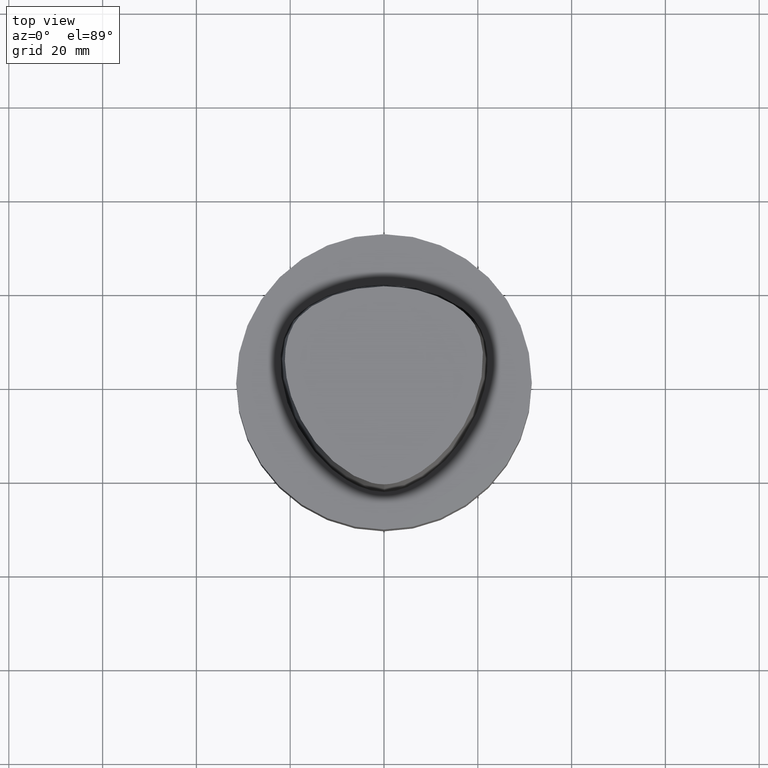
[diagram: clean part render]
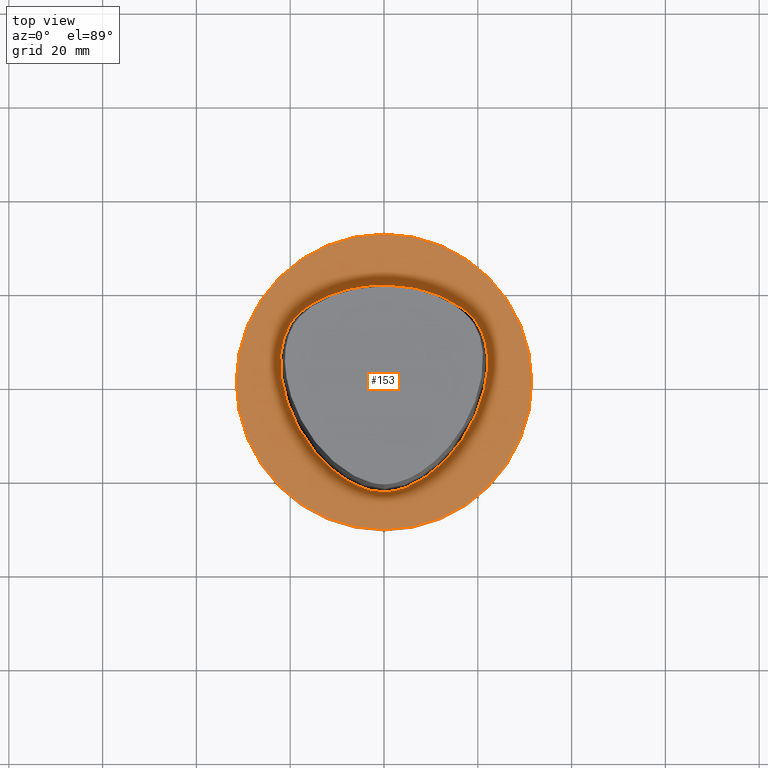
[diagram: same view with one face highlighted and labeled with its STEP entity id]
A machine part, top view. The second image highlights one B-rep face of the part: STEP entity #153.
In plain terms, the highlighted planar face has unit normal (-0, 0, 1).
Its self-contained STEP definition (entity closure, byte-faithful):
#98=EDGE_CURVE('Unnamed[1]',#231,#232,#233,.T.);
#127=EDGE_CURVE('Unnamed[1]',#275,#275,#276,.T.);
#135=EDGE_CURVE('Unnamed[1]',#232,#268,#286,.T.);
#144=EDGE_CURVE('Unnamed[1]',#268,#231,#296,.T.);
#153=ADVANCED_FACE('Unnamed[1]',(#307,#308),#309,.T.);
#231=VERTEX_POINT('',#399);
#232=VERTEX_POINT('',#400);
#233=B_SPLINE_CURVE_WITH_KNOTS('',3,(#401,#402,#403,#404,#405,#406,#407,#408,#409,#410,#411,#412,#413,#414,#415,#416,#417,#418),.UNSPECIFIED.,.F.,.F.,(4,1,1,1,1,1,1,1,1,2,1,1,1,1,4),(-6.6151339308743,-6.20168806019465,-5.78824218951501,-5.37479631883537,-4.96135044815572,-4.13445870679644,-3.30756696543715,-2.89412109475751,-2.48067522407786,-2.06722935339822,-1.65378348271857,-1.24033761203893,-0.826891741359287,-0.413445870679644,0.0),.UNSPECIFIED.);
#268=VERTEX_POINT('',#564);
#275=VERTEX_POINT('',#574);
#276=CIRCLE('',#575,31.5);
#286=CIRCLE('',#587,0.949936168436318);
#296=B_SPLINE_CURVE_WITH_KNOTS('',3,(#601,#602,#603,#604,#605,#606,#607,#608,#609,#610,#611,#612,#613,#614,#615,#616,#617),.UNSPECIFIED.,.F.,.F.,(4,1,1,1,1,1,1,1,1,1,1,1,1,1,4),(-13.2302678617486,-12.816821991069,-12.4033761203893,-11.9899302497097,-11.57648437903,-11.1630385083504,-10.9563155730106,-10.7495926376707,-10.3361467669911,-9.92270089631145,-9.09580915495216,-8.26891741359287,-7.44202567223358,-7.02857980155394,-6.6151339308743),.UNSPECIFIED.);
#307=FACE_BOUND('',#633,.T.);
#308=FACE_OUTER_BOUND('',#634,.T.);
#309=PLANE('',#635);
#399=CARTESIAN_POINT('',(0.04359356758149,-23.4691235068931,7.78075697532443E-032));
#400=CARTESIAN_POINT('',(-0.045171994691285,20.6766009553285,1.6755590516169E-031));
#401=CARTESIAN_POINT('',(0.04359356758149,-23.4691235068931,7.78075697532443E-032));
#402=CARTESIAN_POINT('',(-1.4714994713963,-23.4767895315797,2.46519032881566E-032));
#403=CARTESIAN_POINT('',(-4.43923476371401,-22.821149804767,-4.93038065763132E-032));
#404=CARTESIAN_POINT('',(-8.35043230079961,-20.8000751253325,-9.86076131526265E-032));
#405=CARTESIAN_POINT('',(-11.744900222602,-18.1556117874078,-1.97215226305253E-031));
#406=CARTESIAN_POINT('',(-15.6989602501314,-14.0406306929147,-1.97215226305253E-031));
#407=CARTESIAN_POINT('',(-19.5352875070682,-8.00624990770787,1.97215226305253E-031));
#408=CARTESIAN_POINT('',(-21.7205626190491,-1.16081708945282,0.0));
#409=CARTESIAN_POINT('',(-22.2486616783342,4.54965558738736,0.0));
#410=CARTESIAN_POINT('',(-21.6646421256468,9.00229539124618,0.0));
#411=CARTESIAN_POINT('',(-20.3945635471922,11.7780544971003,0.0));
#412=CARTESIAN_POINT('',(-18.5925528034471,14.1980602922581,0.0));
#413=CARTESIAN_POINT('',(-16.3226584122258,16.1777748720707,0.0));
#414=CARTESIAN_POINT('',(-12.5076407874579,18.2524201541303,9.86076131526265E-032));
#415=CARTESIAN_POINT('',(-8.46776192107786,19.679114377952,9.86076131526265E-032));
#416=CARTESIAN_POINT('',(-4.23043497193604,20.487781597334,1.97215226305253E-031));
#417=CARTESIAN_POINT('',(-1.42313094248379,20.6127745766442,1.10933564796705E-031));
#418=CARTESIAN_POINT('',(-0.045171994691285,20.6766009553285,1.6755590516169E-031));
#564=CARTESIAN_POINT('',(0.044682985379347,20.6765087343109,1.61778115328528E-031));
#574=CARTESIAN_POINT('',(-3.88267476788467E-031,31.5,3.85763741731416E-015));
#575=AXIS2_PLACEMENT_3D('',#820,#821,#822);
#587=AXIS2_PLACEMENT_3D('',#830,#831,#832);
#601=CARTESIAN_POINT('',(0.044682985379347,20.6765087343109,1.61778115328528E-031));
#602=CARTESIAN_POINT('',(1.42379272427753,20.6097915814392,8.62816615085482E-032));
#603=CARTESIAN_POINT('',(4.2230955003445,20.4837538303966,1.4791141972894E-031));
#604=CARTESIAN_POINT('',(8.47220762821777,19.6890432607088,9.86076131526265E-032));
#605=CARTESIAN_POINT('',(12.5141247708253,18.2434968480404,0.0));
#606=CARTESIAN_POINT('',(16.3038624872874,16.1734192182143,1.97215226305253E-031));
#607=CARTESIAN_POINT('',(19.1446913988473,13.7036723639434,-1.97215226305253E-031));
#608=CARTESIAN_POINT('',(20.7319894342149,11.1014620996188,0.0));
#609=CARTESIAN_POINT('',(21.7831756505763,8.28099229708081,-1.97215226305253E-031));
#610=CARTESIAN_POINT('',(22.2258240701438,4.60865440596506,0.0));
#611=CARTESIAN_POINT('',(21.7436130080666,-1.11326526354485,0.0));
#612=CARTESIAN_POINT('',(19.5519487660502,-7.95432366164584,0.0));
#613=CARTESIAN_POINT('',(14.9574167123838,-15.2089785567293,0.0));
#614=CARTESIAN_POINT('',(9.66840283021945,-20.0827414369705,-9.86076131526265E-032));
#615=CARTESIAN_POINT('',(4.51628650521788,-22.7946374572188,-9.86076131526265E-032));
#616=CARTESIAN_POINT('',(1.55867251738073,-23.4612972770043,-1.23259516440783E-032));
#617=CARTESIAN_POINT('',(0.04359356758149,-23.4691235068931,7.78075697532443E-032));
#633=EDGE_LOOP('',(#846,#847,#848));
#634=EDGE_LOOP('',(#849));
#635=AXIS2_PLACEMENT_3D('',#850,#851,#852);
#820=CARTESIAN_POINT('',(0.0,0.0,0.0));
#821=DIRECTION('',(6.12323399573677E-017,1.22464679914735E-016,-1.0));
#822=DIRECTION('',(-1.23259516440783E-032,1.0,1.22464679914735E-016));
#830=CARTESIAN_POINT('',(-0.001218547003662,19.7276821925089,5.52449413963128E-015));
#831=DIRECTION('',(6.12323399573677E-017,-1.03104442548789E-016,-1.0));
#832=DIRECTION('',(-0.046269895968506,0.998928974816059,-1.05827229093978E-016));
#846=ORIENTED_EDGE('',*,*,#144,.T.);
#847=ORIENTED_EDGE('',*,*,#98,.T.);
#848=ORIENTED_EDGE('',*,*,#135,.T.);
#849=ORIENTED_EDGE('',*,*,#127,.F.);
#850=CARTESIAN_POINT('',(-4.11674710145736E-031,15.75,5.48153238745758E-015));
#851=DIRECTION('',(-6.12323399573677E-017,1.03104442548789E-016,1.0));
#852=DIRECTION('',(-1.48617354649328E-033,-1.0,1.03104442548789E-016));